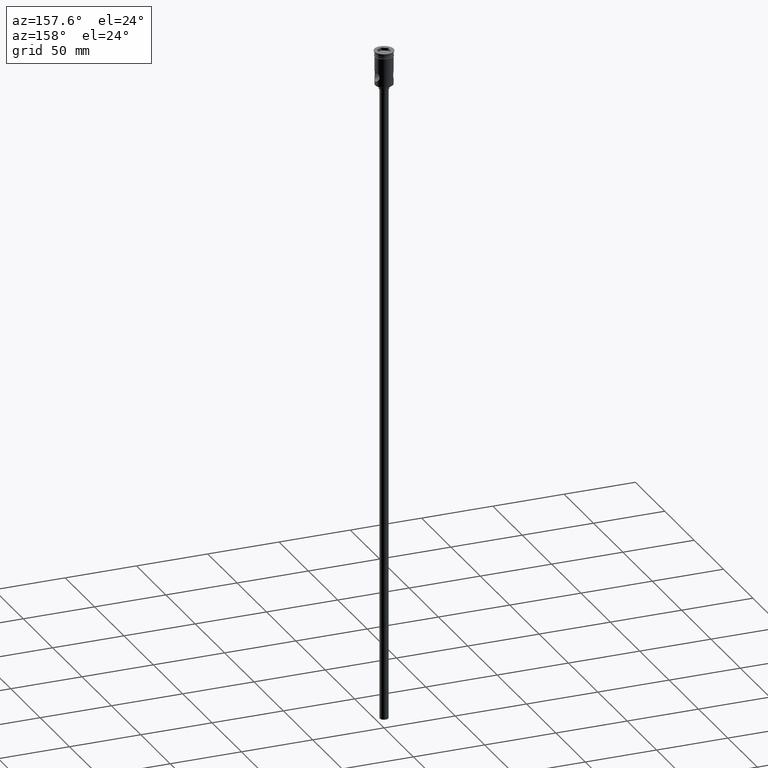
[diagram: clean part render]
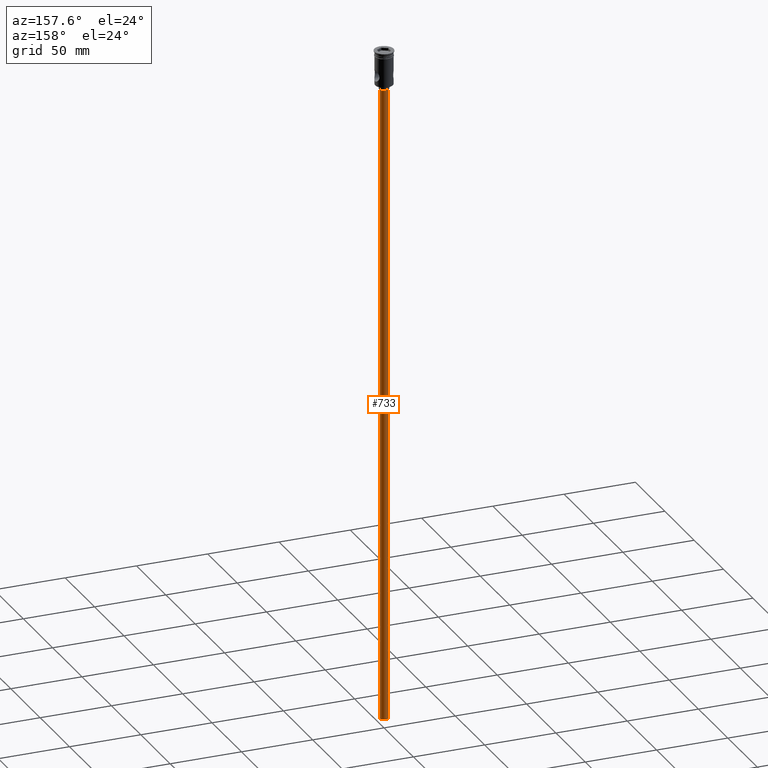
[diagram: same view with one face highlighted and labeled with its STEP entity id]
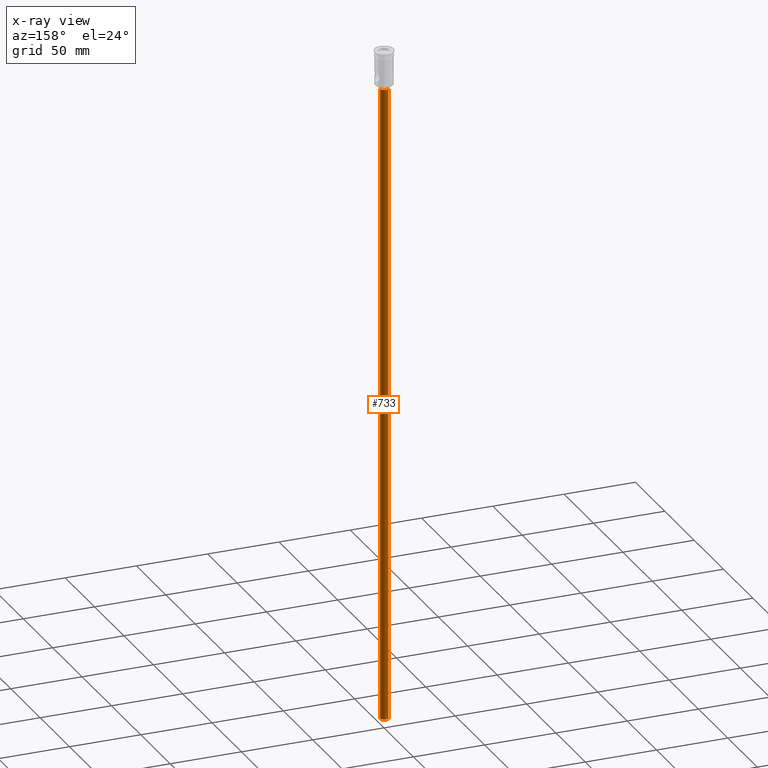
[diagram: x-ray of the same camera — body ghosted, the highlighted face saturated]
A machine part, auxiliary view. The second image highlights one B-rep face of the part: STEP entity #733.
The next image is the same camera in x-ray: the body ghosted, the highlighted face saturated — about 0% of this face is hidden behind the body in this view.
In plain terms, the highlighted cylindrical surface (edge-blend (fillet) strip) has radius 3 mm, axis along (-0, -0, 1).
Its self-contained STEP definition (entity closure, byte-faithful):
#18 = DIRECTION ( 'NONE',  ( 0.000000000000000000, 0.000000000000000000, -1.000000000000000000 ) ) ;
#73 = DIRECTION ( 'NONE',  ( 0.000000000000000000, 0.000000000000000000, -1.000000000000000000 ) ) ;
#141 = AXIS2_PLACEMENT_3D ( 'NONE', #711, #18, #1347 ) ;
#199 = ORIENTED_EDGE ( 'NONE', *, *, #562, .T. ) ;
#240 = LINE ( 'NONE', #918, #1469 ) ;
#304 = CARTESIAN_POINT ( 'NONE',  ( -3.000000000000000444, 3.673940397442060361E-16, -474.0000000000000568 ) ) ;
#325 = CIRCLE ( 'NONE', #141, 3.000000000000000444 ) ;
#355 = EDGE_CURVE ( 'NONE', #1100, #1409, #240, .T. ) ;
#384 = DIRECTION ( 'NONE',  ( -0.000000000000000000, -0.000000000000000000, 1.000000000000000000 ) ) ;
#505 = CYLINDRICAL_SURFACE ( 'NONE', #1065, 3.000000000000000444 ) ;
#514 = EDGE_CURVE ( 'NONE', #1004, #1395, #782, .T. ) ;
#525 = CARTESIAN_POINT ( 'NONE',  ( -3.000000000000000444, 3.673940397442060361E-16, -27.00000000000000000 ) ) ;
#562 = EDGE_CURVE ( 'NONE', #1395, #1409, #325, .T. ) ;
#611 = FACE_OUTER_BOUND ( 'NONE', #673, .T. ) ;
#631 = CARTESIAN_POINT ( 'NONE',  ( -3.000000000000000444, 3.673940397442060361E-16, -474.0000000000000568 ) ) ;
#673 = EDGE_LOOP ( 'NONE', ( #1233, #958, #199, #1286 ) ) ;
#711 = CARTESIAN_POINT ( 'NONE',  ( 0.000000000000000000, 0.000000000000000000, -27.00000000000000000 ) ) ;
#733 = ADVANCED_FACE ( 'NONE', ( #611 ), #505, .T. ) ;
#740 = DIRECTION ( 'NONE',  ( 1.000000000000000000, 0.000000000000000000, 0.000000000000000000 ) ) ;
#775 = DIRECTION ( 'NONE',  ( -0.000000000000000000, -0.000000000000000000, 1.000000000000000000 ) ) ;
#782 = LINE ( 'NONE', #304, #989 ) ;
#784 = AXIS2_PLACEMENT_3D ( 'NONE', #997, #73, #865 ) ;
#865 = DIRECTION ( 'NONE',  ( -1.000000000000000000, 0.000000000000000000, 0.000000000000000000 ) ) ;
#891 = EDGE_CURVE ( 'NONE', #1004, #1100, #926, .T. ) ;
#918 = CARTESIAN_POINT ( 'NONE',  ( 3.000000000000000444, 0.000000000000000000, -474.0000000000000568 ) ) ;
#926 = CIRCLE ( 'NONE', #784, 3.000000000000000444 ) ;
#958 = ORIENTED_EDGE ( 'NONE', *, *, #514, .T. ) ;
#964 = CARTESIAN_POINT ( 'NONE',  ( 3.000000000000000444, 0.000000000000000000, -27.00000000000000000 ) ) ;
#989 = VECTOR ( 'NONE', #775, 1000.000000000000000 ) ;
#997 = CARTESIAN_POINT ( 'NONE',  ( 0.000000000000000000, 0.000000000000000000, -474.0000000000000568 ) ) ;
#1004 = VERTEX_POINT ( 'NONE', #631 ) ;
#1065 = AXIS2_PLACEMENT_3D ( 'NONE', #1406, #384, #740 ) ;
#1080 = DIRECTION ( 'NONE',  ( -0.000000000000000000, -0.000000000000000000, 1.000000000000000000 ) ) ;
#1100 = VERTEX_POINT ( 'NONE', #1141 ) ;
#1141 = CARTESIAN_POINT ( 'NONE',  ( 3.000000000000000444, 0.000000000000000000, -474.0000000000000568 ) ) ;
#1233 = ORIENTED_EDGE ( 'NONE', *, *, #891, .F. ) ;
#1286 = ORIENTED_EDGE ( 'NONE', *, *, #355, .F. ) ;
#1347 = DIRECTION ( 'NONE',  ( -1.000000000000000000, 0.000000000000000000, 0.000000000000000000 ) ) ;
#1395 = VERTEX_POINT ( 'NONE', #525 ) ;
#1406 = CARTESIAN_POINT ( 'NONE',  ( 0.000000000000000000, 0.000000000000000000, -474.0000000000000568 ) ) ;
#1409 = VERTEX_POINT ( 'NONE', #964 ) ;
#1469 = VECTOR ( 'NONE', #1080, 1000.000000000000000 ) ;